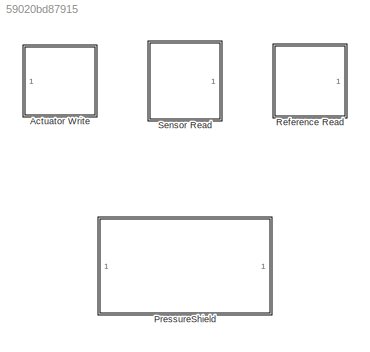
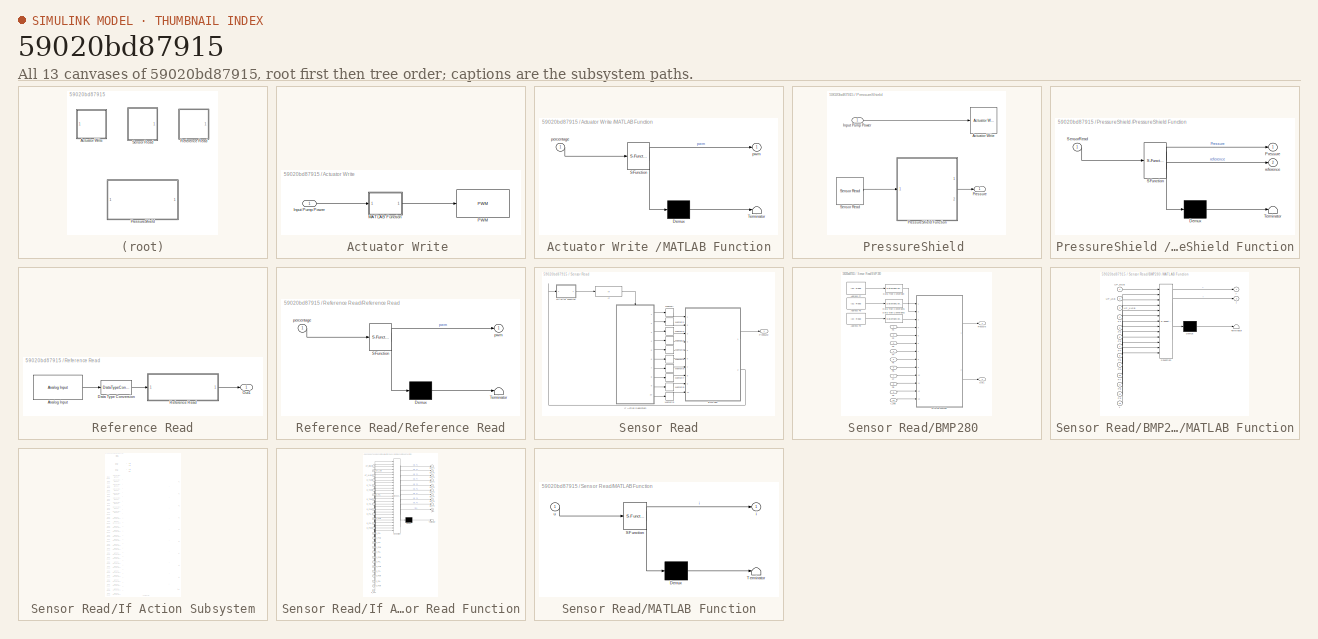
[diagram: thumbnail index - all 13 canvases of the model, root first then tree order]
MODEL slx_59020bd87915
KIND library
CONFIG AbsTol = auto
CONFIG EnableMultiTasking = off
CONFIG FixedStep = auto
CONFIG MaxStep = auto
CONFIG MinStep = auto
CONFIG RelTol = 1e-3
CONFIG SampleTimeConstraint = Unconstrained
CONFIG SolverName = VariableStepAuto
CONFIG StartTime = 0.0
CONFIG StopTime = 10.0
BLOCK [SubSystem] Actuator Write 
  Ports = [1]
  RequestExecContextInheritance = off
BLOCK [Inport] Actuator Write /Input Pump Power
BLOCK [SubSystem] Actuator Write /MATLAB Function
  ErrorFcn = Stateflow.Translate.translate
  PermitHierarchicalResolution = ExplicitOnly
  Ports = [1, 1]
  RequestExecContextInheritance = off
  SFBlockType = MATLAB Function
  SystemSampleTime = 0.01
  TreatAsAtomicUnit = on
BLOCK [Demux] Actuator Write /MATLAB Function/ Demux 
  Outputs = 1
  Ports = [1, 1]
BLOCK [S-Function] Actuator Write /MATLAB Function/ SFunction 
  EnableBusSupport = off
  FunctionName = sf_sfun
  PortCounts = [1 2]
  Ports = [1, 2]
  SFcnIsStateOwnerBlock = off
  SFunctionDeploymentMode = off
  Tag = Stateflow S-Function PressureLibrary 4
BLOCK [Terminator] Actuator Write /MATLAB Function/ Terminator 
BLOCK [Inport] Actuator Write /MATLAB Function/percentage
BLOCK [Outport] Actuator Write /MATLAB Function/pwm
BLOCK [Reference] Actuator Write /PWM  REF=arduinolib/PWM
  Ports = [1]
  SourceBlock = arduinolib/PWM
  SourceProductBaseCode = ARDUINO
  SourceType = Arduino PWM
BLOCK [SubSystem] PressureShield 
  Ports = [1, 1]
  RequestExecContextInheritance = off
BLOCK [Reference] PressureShield /Actuator Write   REF=$bdroot/Actuator Write

  Ports = [1]
  SourceBlock = $bdroot/Actuator Write
  SourceType = SubSystem
BLOCK [Inport] PressureShield /Input Pump Power 
BLOCK [Outport] PressureShield /Pressure 
BLOCK [SubSystem] PressureShield /PressureShield Function
  ErrorFcn = Stateflow.Translate.translate
  PermitHierarchicalResolution = ExplicitOnly
  Ports = [1, 2]
  RequestExecContextInheritance = off
  SFBlockType = MATLAB Function
  SystemSampleTime = 0.01
  TreatAsAtomicUnit = on
BLOCK [Demux] PressureShield /PressureShield Function/ Demux 
  Outputs = 1
  Ports = [1, 1]
BLOCK [S-Function] PressureShield /PressureShield Function/ SFunction 
  EnableBusSupport = off
  FunctionName = sf_sfun
  PortCounts = [1 3]
  Ports = [1, 3]
  SFcnIsStateOwnerBlock = off
  SFunctionDeploymentMode = off
  Tag = Stateflow S-Function PressureLibrary 3
BLOCK [Terminator] PressureShield /PressureShield Function/ Terminator 
BLOCK [Outport] PressureShield /PressureShield Function/Pressure
BLOCK [Inport] PressureShield /PressureShield Function/SensorRead
BLOCK [Outport] PressureShield /PressureShield Function/reference
  Port = 2
BLOCK [Reference] PressureShield /Sensor Read  REF=$bdroot/Sensor Read
  Ports = [0, 1]
  SourceBlock = $bdroot/Sensor Read
  SourceType = SubSystem
BLOCK [SubSystem] Reference Read
  Ports = [0, 1]
  RequestExecContextInheritance = off
BLOCK [Reference] Reference Read/Analog Input  REF=arduinolib/Analog Input
  Ports = [0, 1]
  SourceBlock = arduinolib/Analog Input
  SourceProductBaseCode = ARDUINO
  SourceType = Arduino Analog Input
BLOCK [DataTypeConversion] Reference Read/Data Type Conversion
  OutDataTypeStr = double
  RndMeth = Floor
  SaturateOnIntegerOverflow = off
BLOCK [Outport] Reference Read/Out1
BLOCK [SubSystem] Reference Read/Reference Read
  ErrorFcn = Stateflow.Translate.translate
  PermitHierarchicalResolution = ExplicitOnly
  Ports = [1, 1]
  RequestExecContextInheritance = off
  SFBlockType = MATLAB Function
  SystemSampleTime = 0.01
  TreatAsAtomicUnit = on
BLOCK [Demux] Reference Read/Reference Read/ Demux 
  Outputs = 1
  Ports = [1, 1]
BLOCK [S-Function] Reference Read/Reference Read/ SFunction 
  EnableBusSupport = off
  FunctionName = sf_sfun
  PortCounts = [1 2]
  Ports = [1, 2]
  SFcnIsStateOwnerBlock = off
  SFunctionDeploymentMode = off
  Tag = Stateflow S-Function PressureLibrary 1
BLOCK [Terminator] Reference Read/Reference Read/ Terminator 
BLOCK [Inport] Reference Read/Reference Read/percentage
BLOCK [Outport] Reference Read/Reference Read/pwm
BLOCK [SubSystem] Sensor Read
  Ports = [0, 1]
  RequestExecContextInheritance = off
BLOCK [SubSystem] Sensor Read/BMP280 
  Ports = [10, 2]
  RequestExecContextInheritance = off
BLOCK [Reference] Sensor Read/BMP280 /Address F7  REF=arduinolib/I2C Read
  Ports = [0, 1]
  SourceBlock = arduinolib/I2C Read
  SourceProductBaseCode = ARDUINO
  SourceType = I2C Read
BLOCK [Reference] Sensor Read/BMP280 /Address F8  REF=arduinolib/I2C Read
  Ports = [0, 1]
  SourceBlock = arduinolib/I2C Read
  SourceProductBaseCode = ARDUINO
  SourceType = I2C Read
BLOCK [Reference] Sensor Read/BMP280 /Address F9   REF=arduinolib/I2C Read
  Ports = [0, 1]
  SourceBlock = arduinolib/I2C Read
  SourceProductBaseCode = ARDUINO
  SourceType = I2C Read
BLOCK [DataTypeConversion] Sensor Read/BMP280 /Data Type Conversion
  ConvertRealWorld = Stored Integer (SI)
  OutDataTypeStr = double
  RndMeth = Floor
  SaturateOnIntegerOverflow = off
BLOCK [DataTypeConversion] Sensor Read/BMP280 /Data Type Conversion1
  ConvertRealWorld = Stored Integer (SI)
  OutDataTypeStr = double
  RndMeth = Floor
  SaturateOnIntegerOverflow = off
BLOCK [DataTypeConversion] Sensor Read/BMP280 /Data Type Conversion2
  ConvertRealWorld = Stored Integer (SI)
  OutDataTypeStr = double
  RndMeth = Floor
  SaturateOnIntegerOverflow = off
BLOCK [SubSystem] Sensor Read/BMP280 /MATLAB Function
  ErrorFcn = Stateflow.Translate.translate
  PermitHierarchicalResolution = ExplicitOnly
  Ports = [13, 2]
  RequestExecContextInheritance = off
  SFBlockType = MATLAB Function
  SystemSampleTime = Ts
  TreatAsAtomicUnit = on
BLOCK [Demux] Sensor Read/BMP280 /MATLAB Function/ Demux 
  Outputs = 1
  Ports = [1, 1]
BLOCK [S-Function] Sensor Read/BMP280 /MATLAB Function/ SFunction 
  EnableBusSupport = off
  FunctionName = sf_sfun
  PortCounts = [13 3]
  Ports = [13, 3]
  SFcnIsStateOwnerBlock = off
  SFunctionDeploymentMode = off
  Tag = Stateflow S-Function PressureLibrary 5
BLOCK [Terminator] Sensor Read/BMP280 /MATLAB Function/ Terminator 
BLOCK [Inport] Sensor Read/BMP280 /MATLAB Function/P1
  Port = 4
BLOCK [Inport] Sensor Read/BMP280 /MATLAB Function/P2
  Port = 5
BLOCK [Inport] Sensor Read/BMP280 /MATLAB Function/P3
  Port = 6
BLOCK [Inport] Sensor Read/BMP280 /MATLAB Function/P4
  Port = 7
BLOCK [Inport] Sensor Read/BMP280 /MATLAB Function/P5
  Port = 8
BLOCK [Inport] Sensor Read/BMP280 /MATLAB Function/P6
  Port = 9
BLOCK [Inport] Sensor Read/BMP280 /MATLAB Function/P7
  Port = 10
BLOCK [Inport] Sensor Read/BMP280 /MATLAB Function/P8
  Port = 11
BLOCK [Inport] Sensor Read/BMP280 /MATLAB Function/P9
  Port = 12
BLOCK [Inport] Sensor Read/BMP280 /MATLAB Function/UP_LSB
  Port = 2
BLOCK [Inport] Sensor Read/BMP280 /MATLAB Function/UP_MSB
BLOCK [Inport] Sensor Read/BMP280 /MATLAB Function/UP_XLSB
  Port = 3
BLOCK [Outport] Sensor Read/BMP280 /MATLAB Function/i
  Port = 2
BLOCK [Inport] Sensor Read/BMP280 /MATLAB Function/t
  Port = 13
BLOCK [Outport] Sensor Read/BMP280 /MATLAB Function/y
BLOCK [Outport] Sensor Read/BMP280 /Out1
  Port = 2
BLOCK [Inport] Sensor Read/BMP280 /P1
BLOCK [Inport] Sensor Read/BMP280 /P2
  Port = 2
BLOCK [Inport] Sensor Read/BMP280 /P3
  Port = 3
BLOCK [Inport] Sensor Read/BMP280 /P4
  Port = 4
BLOCK [Inport] Sensor Read/BMP280 /P5
  Port = 5
BLOCK [Inport] Sensor Read/BMP280 /P6
  Port = 6
BLOCK [Inport] Sensor Read/BMP280 /P7
  Port = 7
BLOCK [Inport] Sensor Read/BMP280 /P8
  Port = 8
BLOCK [Inport] Sensor Read/BMP280 /P9
  Port = 9
BLOCK [Outport] Sensor Read/BMP280 /Pressure
BLOCK [Inport] Sensor Read/BMP280 /t_fine
  Port = 10
BLOCK [If] Sensor Read/If
  IfExpression = u1 == 1
  Ports = [1, 1]
  ShowElse = off
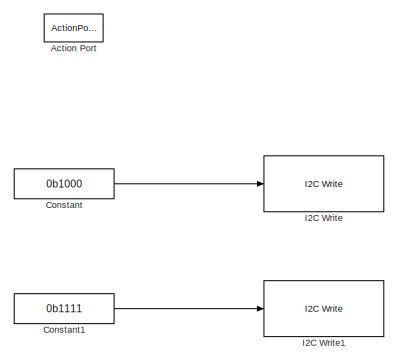
[diagram: Sensor Read/If Action Subsystem - part 1/6, top left region]
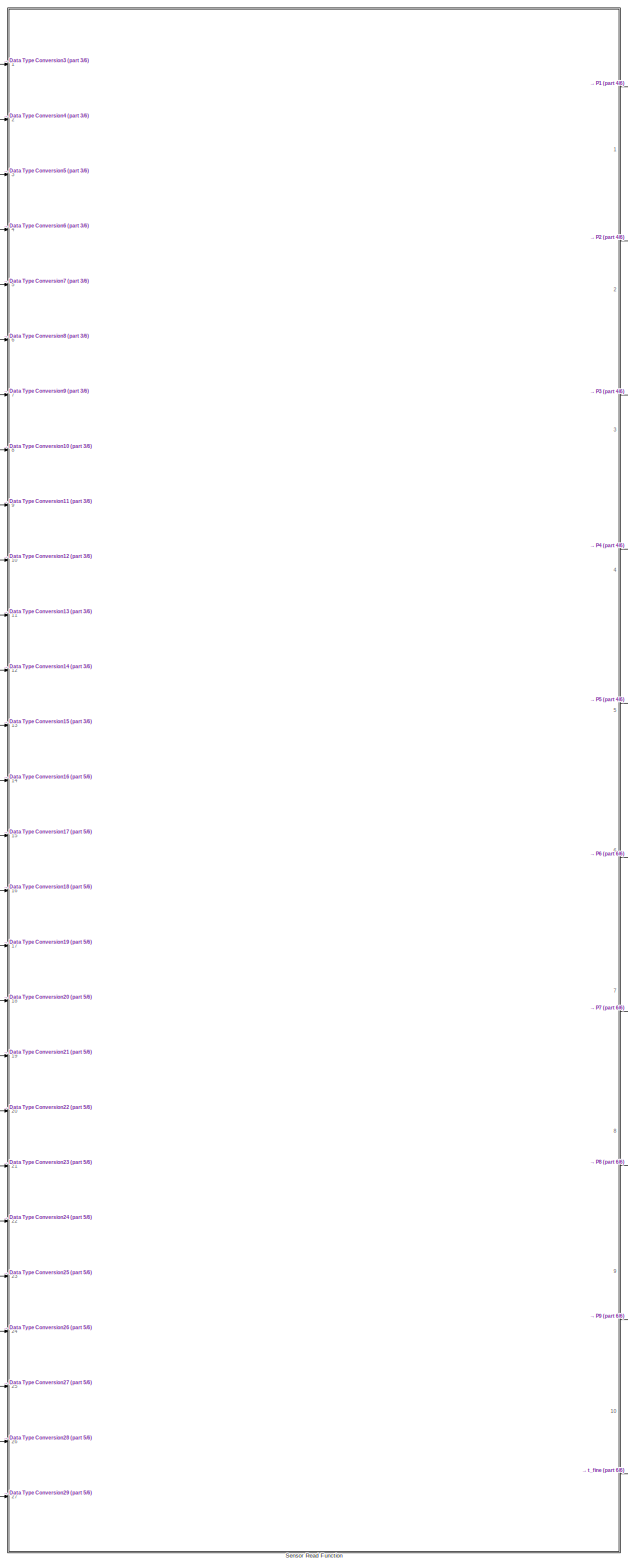
[diagram: Sensor Read/If Action Subsystem - part 2/6, center side, full height]
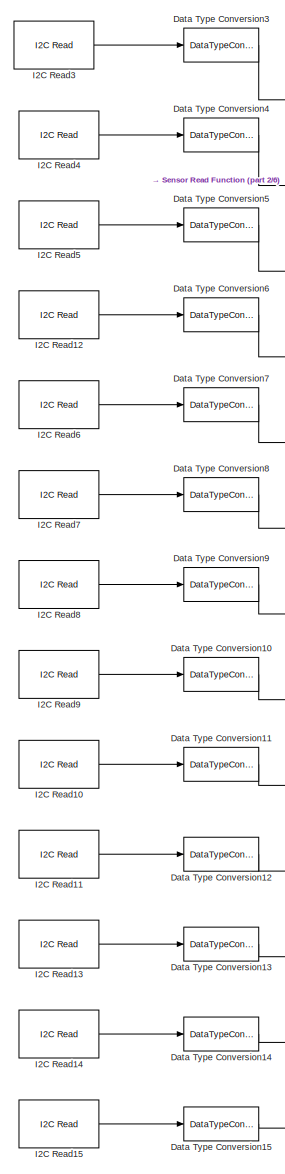
[diagram: Sensor Read/If Action Subsystem - part 3/6, middle left region]
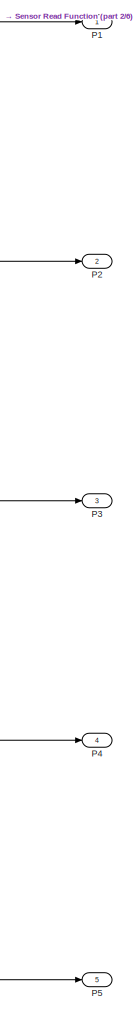
[diagram: Sensor Read/If Action Subsystem - part 4/6, middle right region]
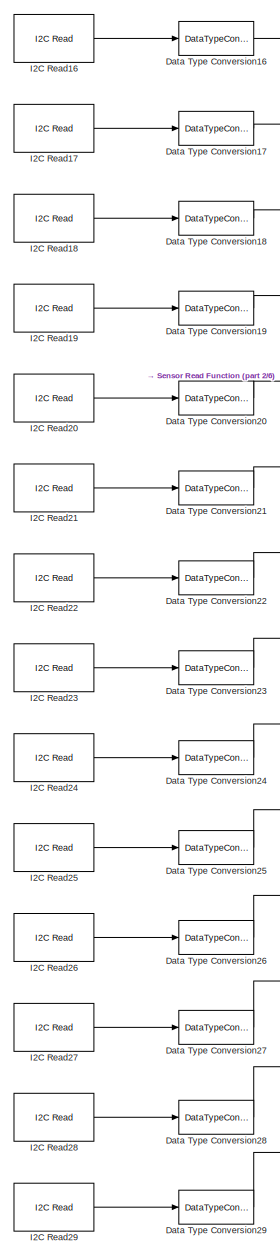
[diagram: Sensor Read/If Action Subsystem - part 5/6, bottom left region]
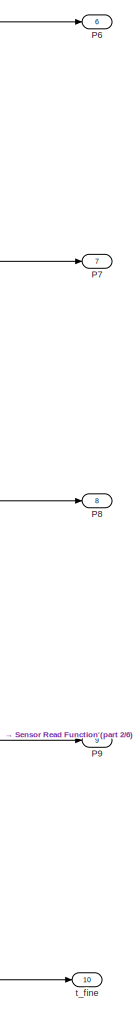
[diagram: Sensor Read/If Action Subsystem - part 6/6, bottom right region]
BLOCK [SubSystem] Sensor Read/If Action Subsystem
  Ports = [0, 10, 0, 0, 0, 0, 0, 1]
  RequestExecContextInheritance = off
  TreatAsAtomicUnit = on
BLOCK [ActionPort] Sensor Read/If Action Subsystem/Action Port
BLOCK [Constant] Sensor Read/If Action Subsystem/Constant
  OutDataTypeStr = uint8
  Value = 0b1000
  VectorParams1D = off
BLOCK [Constant] Sensor Read/If Action Subsystem/Constant1
  OutDataTypeStr = uint8
  Value = 0b1111
BLOCK [DataTypeConversion] Sensor Read/If Action Subsystem/Data Type Conversion10
  ConvertRealWorld = Stored Integer (SI)
  OutDataTypeStr = double
  RndMeth = Floor
  SaturateOnIntegerOverflow = off
BLOCK [DataTypeConversion] Sensor Read/If Action Subsystem/Data Type Conversion11
  ConvertRealWorld = Stored Integer (SI)
  OutDataTypeStr = double
  RndMeth = Floor
  SaturateOnIntegerOverflow = off
BLOCK [DataTypeConversion] Sensor Read/If Action Subsystem/Data Type Conversion12
  ConvertRealWorld = Stored Integer (SI)
  OutDataTypeStr = double
  RndMeth = Floor
  SaturateOnIntegerOverflow = off
BLOCK [DataTypeConversion] Sensor Read/If Action Subsystem/Data Type Conversion13
  ConvertRealWorld = Stored Integer (SI)
  OutDataTypeStr = double
  RndMeth = Floor
  SaturateOnIntegerOverflow = off
BLOCK [DataTypeConversion] Sensor Read/If Action Subsystem/Data Type Conversion14
  ConvertRealWorld = Stored Integer (SI)
  OutDataTypeStr = double
  RndMeth = Floor
  SaturateOnIntegerOverflow = off
BLOCK [DataTypeConversion] Sensor Read/If Action Subsystem/Data Type Conversion15
  ConvertRealWorld = Stored Integer (SI)
  OutDataTypeStr = double
  RndMeth = Floor
  SaturateOnIntegerOverflow = off
BLOCK [DataTypeConversion] Sensor Read/If Action Subsystem/Data Type Conversion16
  ConvertRealWorld = Stored Integer (SI)
  OutDataTypeStr = double
  RndMeth = Floor
  SaturateOnIntegerOverflow = off
BLOCK [DataTypeConversion] Sensor Read/If Action Subsystem/Data Type Conversion17
  ConvertRealWorld = Stored Integer (SI)
  OutDataTypeStr = double
  RndMeth = Floor
  SaturateOnIntegerOverflow = off
BLOCK [DataTypeConversion] Sensor Read/If Action Subsystem/Data Type Conversion18
  ConvertRealWorld = Stored Integer (SI)
  OutDataTypeStr = double
  RndMeth = Floor
  SaturateOnIntegerOverflow = off
BLOCK [DataTypeConversion] Sensor Read/If Action Subsystem/Data Type Conversion19
  ConvertRealWorld = Stored Integer (SI)
  OutDataTypeStr = double
  RndMeth = Floor
  SaturateOnIntegerOverflow = off
BLOCK [DataTypeConversion] Sensor Read/If Action Subsystem/Data Type Conversion20
  ConvertRealWorld = Stored Integer (SI)
  OutDataTypeStr = double
  RndMeth = Floor
  SaturateOnIntegerOverflow = off
BLOCK [DataTypeConversion] Sensor Read/If Action Subsystem/Data Type Conversion21
  ConvertRealWorld = Stored Integer (SI)
  OutDataTypeStr = double
  RndMeth = Floor
  SaturateOnIntegerOverflow = off
BLOCK [DataTypeConversion] Sensor Read/If Action Subsystem/Data Type Conversion22
  ConvertRealWorld = Stored Integer (SI)
  OutDataTypeStr = double
  RndMeth = Floor
  SaturateOnIntegerOverflow = off
BLOCK [DataTypeConversion] Sensor Read/If Action Subsystem/Data Type Conversion23
  ConvertRealWorld = Stored Integer (SI)
  OutDataTypeStr = double
  RndMeth = Floor
  SaturateOnIntegerOverflow = off
BLOCK [DataTypeConversion] Sensor Read/If Action Subsystem/Data Type Conversion24
  ConvertRealWorld = Stored Integer (SI)
  OutDataTypeStr = double
  RndMeth = Floor
  SaturateOnIntegerOverflow = off
BLOCK [DataTypeConversion] Sensor Read/If Action Subsystem/Data Type Conversion25
  ConvertRealWorld = Stored Integer (SI)
  OutDataTypeStr = double
  RndMeth = Floor
  SaturateOnIntegerOverflow = off
BLOCK [DataTypeConversion] Sensor Read/If Action Subsystem/Data Type Conversion26
  ConvertRealWorld = Stored Integer (SI)
  OutDataTypeStr = double
  RndMeth = Floor
  SaturateOnIntegerOverflow = off
BLOCK [DataTypeConversion] Sensor Read/If Action Subsystem/Data Type Conversion27
  ConvertRealWorld = Stored Integer (SI)
  OutDataTypeStr = double
  RndMeth = Floor
  SaturateOnIntegerOverflow = off
BLOCK [DataTypeConversion] Sensor Read/If Action Subsystem/Data Type Conversion28
  ConvertRealWorld = Stored Integer (SI)
  OutDataTypeStr = double
  RndMeth = Floor
  SaturateOnIntegerOverflow = off
BLOCK [DataTypeConversion] Sensor Read/If Action Subsystem/Data Type Conversion29
  ConvertRealWorld = Stored Integer (SI)
  OutDataTypeStr = double
  RndMeth = Floor
  SaturateOnIntegerOverflow = off
BLOCK [DataTypeConversion] Sensor Read/If Action Subsystem/Data Type Conversion3
  ConvertRealWorld = Stored Integer (SI)
  OutDataTypeStr = double
  RndMeth = Floor
  SaturateOnIntegerOverflow = off
BLOCK [DataTypeConversion] Sensor Read/If Action Subsystem/Data Type Conversion4
  ConvertRealWorld = Stored Integer (SI)
  OutDataTypeStr = double
  RndMeth = Floor
  SaturateOnIntegerOverflow = off
BLOCK [DataTypeConversion] Sensor Read/If Action Subsystem/Data Type Conversion5
  ConvertRealWorld = Stored Integer (SI)
  OutDataTypeStr = double
  RndMeth = Floor
  SaturateOnIntegerOverflow = off
BLOCK [DataTypeConversion] Sensor Read/If Action Subsystem/Data Type Conversion6
  ConvertRealWorld = Stored Integer (SI)
  OutDataTypeStr = double
  RndMeth = Floor
  SaturateOnIntegerOverflow = off
BLOCK [DataTypeConversion] Sensor Read/If Action Subsystem/Data Type Conversion7
  ConvertRealWorld = Stored Integer (SI)
  OutDataTypeStr = double
  RndMeth = Floor
  SaturateOnIntegerOverflow = off
BLOCK [DataTypeConversion] Sensor Read/If Action Subsystem/Data Type Conversion8
  ConvertRealWorld = Stored Integer (SI)
  OutDataTypeStr = double
  RndMeth = Floor
  SaturateOnIntegerOverflow = off
BLOCK [DataTypeConversion] Sensor Read/If Action Subsystem/Data Type Conversion9
  ConvertRealWorld = Stored Integer (SI)
  OutDataTypeStr = double
  RndMeth = Floor
  SaturateOnIntegerOverflow = off
BLOCK [Reference] Sensor Read/If Action Subsystem/I2C Read10  REF=arduinolib/I2C Read
  Ports = [0, 1]
  SourceBlock = arduinolib/I2C Read
  SourceProductBaseCode = ARDUINO
  SourceType = I2C Read
BLOCK [Reference] Sensor Read/If Action Subsystem/I2C Read11  REF=arduinolib/I2C Read
  Ports = [0, 1]
  SourceBlock = arduinolib/I2C Read
  SourceProductBaseCode = ARDUINO
  SourceType = I2C Read
BLOCK [Reference] Sensor Read/If Action Subsystem/I2C Read12  REF=arduinolib/I2C Read
  Ports = [0, 1]
  SourceBlock = arduinolib/I2C Read
  SourceProductBaseCode = ARDUINO
  SourceType = I2C Read
BLOCK [Reference] Sensor Read/If Action Subsystem/I2C Read13  REF=arduinolib/I2C Read
  Ports = [0, 1]
  SourceBlock = arduinolib/I2C Read
  SourceProductBaseCode = ARDUINO
  SourceType = I2C Read
BLOCK [Reference] Sensor Read/If Action Subsystem/I2C Read14  REF=arduinolib/I2C Read
  Ports = [0, 1]
  SourceBlock = arduinolib/I2C Read
  SourceProductBaseCode = ARDUINO
  SourceType = I2C Read
BLOCK [Reference] Sensor Read/If Action Subsystem/I2C Read15  REF=arduinolib/I2C Read
  Ports = [0, 1]
  SourceBlock = arduinolib/I2C Read
  SourceProductBaseCode = ARDUINO
  SourceType = I2C Read
BLOCK [Reference] Sensor Read/If Action Subsystem/I2C Read16  REF=arduinolib/I2C Read
  Ports = [0, 1]
  SourceBlock = arduinolib/I2C Read
  SourceProductBaseCode = ARDUINO
  SourceType = I2C Read
BLOCK [Reference] Sensor Read/If Action Subsystem/I2C Read17  REF=arduinolib/I2C Read
  Ports = [0, 1]
  SourceBlock = arduinolib/I2C Read
  SourceProductBaseCode = ARDUINO
  SourceType = I2C Read
BLOCK [Reference] Sensor Read/If Action Subsystem/I2C Read18  REF=arduinolib/I2C Read
  Ports = [0, 1]
  SourceBlock = arduinolib/I2C Read
  SourceProductBaseCode = ARDUINO
  SourceType = I2C Read
BLOCK [Reference] Sensor Read/If Action Subsystem/I2C Read19  REF=arduinolib/I2C Read
  Ports = [0, 1]
  SourceBlock = arduinolib/I2C Read
  SourceProductBaseCode = ARDUINO
  SourceType = I2C Read
BLOCK [Reference] Sensor Read/If Action Subsystem/I2C Read20  REF=arduinolib/I2C Read
  Ports = [0, 1]
  SourceBlock = arduinolib/I2C Read
  SourceProductBaseCode = ARDUINO
  SourceType = I2C Read
BLOCK [Reference] Sensor Read/If Action Subsystem/I2C Read21  REF=arduinolib/I2C Read
  Ports = [0, 1]
  SourceBlock = arduinolib/I2C Read
  SourceProductBaseCode = ARDUINO
  SourceType = I2C Read
BLOCK [Reference] Sensor Read/If Action Subsystem/I2C Read22  REF=arduinolib/I2C Read
  Ports = [0, 1]
  SourceBlock = arduinolib/I2C Read
  SourceProductBaseCode = ARDUINO
  SourceType = I2C Read
BLOCK [Reference] Sensor Read/If Action Subsystem/I2C Read23  REF=arduinolib/I2C Read
  Ports = [0, 1]
  SourceBlock = arduinolib/I2C Read
  SourceProductBaseCode = ARDUINO
  SourceType = I2C Read
BLOCK [Reference] Sensor Read/If Action Subsystem/I2C Read24  REF=arduinolib/I2C Read
  Ports = [0, 1]
  SourceBlock = arduinolib/I2C Read
  SourceProductBaseCode = ARDUINO
  SourceType = I2C Read
BLOCK [Reference] Sensor Read/If Action Subsystem/I2C Read25  REF=arduinolib/I2C Read
  Ports = [0, 1]
  SourceBlock = arduinolib/I2C Read
  SourceProductBaseCode = ARDUINO
  SourceType = I2C Read
BLOCK [Reference] Sensor Read/If Action Subsystem/I2C Read26  REF=arduinolib/I2C Read
  Ports = [0, 1]
  SourceBlock = arduinolib/I2C Read
  SourceProductBaseCode = ARDUINO
  SourceType = I2C Read
BLOCK [Reference] Sensor Read/If Action Subsystem/I2C Read27  REF=arduinolib/I2C Read
  Ports = [0, 1]
  SourceBlock = arduinolib/I2C Read
  SourceProductBaseCode = ARDUINO
  SourceType = I2C Read
BLOCK [Reference] Sensor Read/If Action Subsystem/I2C Read28  REF=arduinolib/I2C Read
  Ports = [0, 1]
  SourceBlock = arduinolib/I2C Read
  SourceProductBaseCode = ARDUINO
  SourceType = I2C Read
BLOCK [Reference] Sensor Read/If Action Subsystem/I2C Read29  REF=arduinolib/I2C Read
  Ports = [0, 1]
  SourceBlock = arduinolib/I2C Read
  SourceProductBaseCode = ARDUINO
  SourceType = I2C Read
BLOCK [Reference] Sensor Read/If Action Subsystem/I2C Read3  REF=arduinolib/I2C Read
  Ports = [0, 1]
  SourceBlock = arduinolib/I2C Read
  SourceProductBaseCode = ARDUINO
  SourceType = I2C Read
BLOCK [Reference] Sensor Read/If Action Subsystem/I2C Read4  REF=arduinolib/I2C Read
  Ports = [0, 1]
  SourceBlock = arduinolib/I2C Read
  SourceProductBaseCode = ARDUINO
  SourceType = I2C Read
BLOCK [Reference] Sensor Read/If Action Subsystem/I2C Read5  REF=arduinolib/I2C Read
  Ports = [0, 1]
  SourceBlock = arduinolib/I2C Read
  SourceProductBaseCode = ARDUINO
  SourceType = I2C Read
BLOCK [Reference] Sensor Read/If Action Subsystem/I2C Read6  REF=arduinolib/I2C Read
  Ports = [0, 1]
  SourceBlock = arduinolib/I2C Read
  SourceProductBaseCode = ARDUINO
  SourceType = I2C Read
BLOCK [Reference] Sensor Read/If Action Subsystem/I2C Read7  REF=arduinolib/I2C Read
  Ports = [0, 1]
  SourceBlock = arduinolib/I2C Read
  SourceProductBaseCode = ARDUINO
  SourceType = I2C Read
BLOCK [Reference] Sensor Read/If Action Subsystem/I2C Read8  REF=arduinolib/I2C Read
  Ports = [0, 1]
  SourceBlock = arduinolib/I2C Read
  SourceProductBaseCode = ARDUINO
  SourceType = I2C Read
BLOCK [Reference] Sensor Read/If Action Subsystem/I2C Read9  REF=arduinolib/I2C Read
  Ports = [0, 1]
  SourceBlock = arduinolib/I2C Read
  SourceProductBaseCode = ARDUINO
  SourceType = I2C Read
BLOCK [Reference] Sensor Read/If Action Subsystem/I2C Write  REF=arduinolib/I2C Write
  Ports = [1]
  SourceBlock = arduinolib/I2C Write
  SourceProductBaseCode = ARDUINO
  SourceType = I2C Write
BLOCK [Reference] Sensor Read/If Action Subsystem/I2C Write1  REF=arduinolib/I2C Write
  Ports = [1]
  SourceBlock = arduinolib/I2C Write
  SourceProductBaseCode = ARDUINO
  SourceType = I2C Write
BLOCK [Outport] Sensor Read/If Action Subsystem/P1
BLOCK [Outport] Sensor Read/If Action Subsystem/P2
  Port = 2
BLOCK [Outport] Sensor Read/If Action Subsystem/P3
  Port = 3
BLOCK [Outport] Sensor Read/If Action Subsystem/P4
  Port = 4
BLOCK [Outport] Sensor Read/If Action Subsystem/P5
  Port = 5
BLOCK [Outport] Sensor Read/If Action Subsystem/P6
  Port = 6
BLOCK [Outport] Sensor Read/If Action Subsystem/P7
  Port = 7
BLOCK [Outport] Sensor Read/If Action Subsystem/P8
  Port = 8
BLOCK [Outport] Sensor Read/If Action Subsystem/P9
  Port = 9
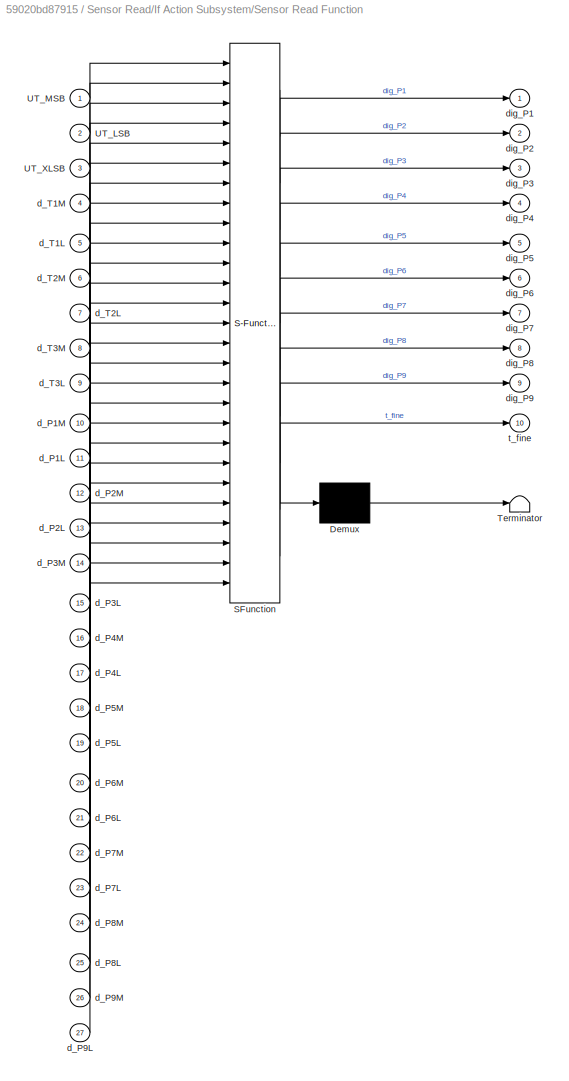
BLOCK [SubSystem] Sensor Read/If Action Subsystem/Sensor Read Function
  ErrorFcn = Stateflow.Translate.translate
  PermitHierarchicalResolution = ExplicitOnly
  Ports = [27, 10]
  RequestExecContextInheritance = off
  SFBlockType = MATLAB Function
  SystemSampleTime = Ts
  TreatAsAtomicUnit = on
BLOCK [Demux] Sensor Read/If Action Subsystem/Sensor Read Function/ Demux 
  Outputs = 1
  Ports = [1, 1]
BLOCK [S-Function] Sensor Read/If Action Subsystem/Sensor Read Function/ SFunction 
  EnableBusSupport = off
  FunctionName = sf_sfun
  PortCounts = [27 11]
  Ports = [27, 11]
  SFcnIsStateOwnerBlock = off
  SFunctionDeploymentMode = off
  Tag = Stateflow S-Function PressureLibrary 8
BLOCK [Terminator] Sensor Read/If Action Subsystem/Sensor Read Function/ Terminator 
BLOCK [Inport] Sensor Read/If Action Subsystem/Sensor Read Function/UT_LSB
  Port = 2
BLOCK [Inport] Sensor Read/If Action Subsystem/Sensor Read Function/UT_MSB
BLOCK [Inport] Sensor Read/If Action Subsystem/Sensor Read Function/UT_XLSB
  Port = 3
BLOCK [Inport] Sensor Read/If Action Subsystem/Sensor Read Function/d_P1L
  Port = 11
BLOCK [Inport] Sensor Read/If Action Subsystem/Sensor Read Function/d_P1M
  Port = 10
BLOCK [Inport] Sensor Read/If Action Subsystem/Sensor Read Function/d_P2L
  Port = 13
BLOCK [Inport] Sensor Read/If Action Subsystem/Sensor Read Function/d_P2M
  Port = 12
BLOCK [Inport] Sensor Read/If Action Subsystem/Sensor Read Function/d_P3L
  Port = 15
BLOCK [Inport] Sensor Read/If Action Subsystem/Sensor Read Function/d_P3M
  Port = 14
BLOCK [Inport] Sensor Read/If Action Subsystem/Sensor Read Function/d_P4L
  Port = 17
BLOCK [Inport] Sensor Read/If Action Subsystem/Sensor Read Function/d_P4M
  Port = 16
BLOCK [Inport] Sensor Read/If Action Subsystem/Sensor Read Function/d_P5L
  Port = 19
BLOCK [Inport] Sensor Read/If Action Subsystem/Sensor Read Function/d_P5M
  Port = 18
BLOCK [Inport] Sensor Read/If Action Subsystem/Sensor Read Function/d_P6L
  Port = 21
BLOCK [Inport] Sensor Read/If Action Subsystem/Sensor Read Function/d_P6M
  Port = 20
BLOCK [Inport] Sensor Read/If Action Subsystem/Sensor Read Function/d_P7L
  Port = 23
BLOCK [Inport] Sensor Read/If Action Subsystem/Sensor Read Function/d_P7M
  Port = 22
BLOCK [Inport] Sensor Read/If Action Subsystem/Sensor Read Function/d_P8L
  Port = 25
BLOCK [Inport] Sensor Read/If Action Subsystem/Sensor Read Function/d_P8M
  Port = 24
BLOCK [Inport] Sensor Read/If Action Subsystem/Sensor Read Function/d_P9L
  Port = 27
BLOCK [Inport] Sensor Read/If Action Subsystem/Sensor Read Function/d_P9M
  Port = 26
BLOCK [Inport] Sensor Read/If Action Subsystem/Sensor Read Function/d_T1L
  Port = 5
BLOCK [Inport] Sensor Read/If Action Subsystem/Sensor Read Function/d_T1M
  Port = 4
BLOCK [Inport] Sensor Read/If Action Subsystem/Sensor Read Function/d_T2L
  Port = 7
BLOCK [Inport] Sensor Read/If Action Subsystem/Sensor Read Function/d_T2M
  Port = 6
BLOCK [Inport] Sensor Read/If Action Subsystem/Sensor Read Function/d_T3L
  Port = 9
BLOCK [Inport] Sensor Read/If Action Subsystem/Sensor Read Function/d_T3M
  Port = 8
BLOCK [Outport] Sensor Read/If Action Subsystem/Sensor Read Function/dig_P1
BLOCK [Outport] Sensor Read/If Action Subsystem/Sensor Read Function/dig_P2
  Port = 2
BLOCK [Outport] Sensor Read/If Action Subsystem/Sensor Read Function/dig_P3
  Port = 3
BLOCK [Outport] Sensor Read/If Action Subsystem/Sensor Read Function/dig_P4
  Port = 4
BLOCK [Outport] Sensor Read/If Action Subsystem/Sensor Read Function/dig_P5
  Port = 5
BLOCK [Outport] Sensor Read/If Action Subsystem/Sensor Read Function/dig_P6
  Port = 6
BLOCK [Outport] Sensor Read/If Action Subsystem/Sensor Read Function/dig_P7
  Port = 7
BLOCK [Outport] Sensor Read/If Action Subsystem/Sensor Read Function/dig_P8
  Port = 8
BLOCK [Outport] Sensor Read/If Action Subsystem/Sensor Read Function/dig_P9
  Port = 9
BLOCK [Outport] Sensor Read/If Action Subsystem/Sensor Read Function/t_fine
  Port = 10
BLOCK [Outport] Sensor Read/If Action Subsystem/t_fine
  Port = 10
BLOCK [SubSystem] Sensor Read/MATLAB Function
  ErrorFcn = Stateflow.Translate.translate
  PermitHierarchicalResolution = ExplicitOnly
  Ports = [1, 1]
  RequestExecContextInheritance = off
  SFBlockType = MATLAB Function
  SystemSampleTime = 0.01
  TreatAsAtomicUnit = on
BLOCK [Demux] Sensor Read/MATLAB Function/ Demux 
  Outputs = 1
  Ports = [1, 1]
BLOCK [S-Function] Sensor Read/MATLAB Function/ SFunction 
  EnableBusSupport = off
  FunctionName = sf_sfun
  PortCounts = [1 2]
  Ports = [1, 2]
  SFcnIsStateOwnerBlock = off
  SFunctionDeploymentMode = off
  Tag = Stateflow S-Function PressureLibrary 7
BLOCK [Terminator] Sensor Read/MATLAB Function/ Terminator 
BLOCK [Outport] Sensor Read/MATLAB Function/i
BLOCK [Inport] Sensor Read/MATLAB Function/u
BLOCK [Memory] Sensor Read/Memory
BLOCK [Memory] Sensor Read/Memory1
BLOCK [Memory] Sensor Read/Memory2
BLOCK [Memory] Sensor Read/Memory3
BLOCK [Memory] Sensor Read/Memory4
BLOCK [Memory] Sensor Read/Memory5
BLOCK [Memory] Sensor Read/Memory6
BLOCK [Memory] Sensor Read/Memory7
BLOCK [Memory] Sensor Read/Memory8
BLOCK [Memory] Sensor Read/Memory9
BLOCK [Outport] Sensor Read/Pressure
LINE Actuator Write /Input Pump Power:1 -> Actuator Write /MATLAB Function:1
LINE Actuator Write /MATLAB Function:1 -> Actuator Write /PWM:1
LINE PressureShield /Input Pump Power :1 -> PressureShield /Actuator Write :1
LINE PressureShield /PressureShield Function:1 -> PressureShield /Pressure :1
LINE PressureShield /Sensor Read:1 -> PressureShield /PressureShield Function:1
LINE Reference Read/Analog Input:1 -> Reference Read/Data Type Conversion:1
LINE Reference Read/Data Type Conversion:1 -> Reference Read/Reference Read:1
LINE Reference Read/Reference Read:1 -> Reference Read/Out1:1
LINE Sensor Read/BMP280 /Address F7:1 -> Sensor Read/BMP280 /Data Type Conversion:1
LINE Sensor Read/BMP280 /Address F8:1 -> Sensor Read/BMP280 /Data Type Conversion1:1
LINE Sensor Read/BMP280 /Address F9 :1 -> Sensor Read/BMP280 /Data Type Conversion2:1
LINE Sensor Read/BMP280 /Data Type Conversion1:1 -> Sensor Read/BMP280 /MATLAB Function:2
LINE Sensor Read/BMP280 /Data Type Conversion2:1 -> Sensor Read/BMP280 /MATLAB Function:3
LINE Sensor Read/BMP280 /Data Type Conversion:1 -> Sensor Read/BMP280 /MATLAB Function:1
LINE Sensor Read/BMP280 /MATLAB Function:1 -> Sensor Read/BMP280 /Pressure:1
LINE Sensor Read/BMP280 /MATLAB Function:2 -> Sensor Read/BMP280 /Out1:1
LINE Sensor Read/BMP280 /P1:1 -> Sensor Read/BMP280 /MATLAB Function:4
LINE Sensor Read/BMP280 /P2:1 -> Sensor Read/BMP280 /MATLAB Function:5
LINE Sensor Read/BMP280 /P3:1 -> Sensor Read/BMP280 /MATLAB Function:6
LINE Sensor Read/BMP280 /P4:1 -> Sensor Read/BMP280 /MATLAB Function:7
LINE Sensor Read/BMP280 /P5:1 -> Sensor Read/BMP280 /MATLAB Function:8
LINE Sensor Read/BMP280 /P6:1 -> Sensor Read/BMP280 /MATLAB Function:9
LINE Sensor Read/BMP280 /P7:1 -> Sensor Read/BMP280 /MATLAB Function:10
LINE Sensor Read/BMP280 /P8:1 -> Sensor Read/BMP280 /MATLAB Function:11
LINE Sensor Read/BMP280 /P9:1 -> Sensor Read/BMP280 /MATLAB Function:12
LINE Sensor Read/BMP280 /t_fine:1 -> Sensor Read/BMP280 /MATLAB Function:13
LINE Sensor Read/BMP280 :1 -> Sensor Read/Pressure:1
LINE Sensor Read/BMP280 :2 -> Sensor Read/MATLAB Function:1
LINE Sensor Read/If Action Subsystem/Constant1:1 -> Sensor Read/If Action Subsystem/I2C Write1:1
LINE Sensor Read/If Action Subsystem/Constant:1 -> Sensor Read/If Action Subsystem/I2C Write:1
LINE Sensor Read/If Action Subsystem/Data Type Conversion10:1 -> Sensor Read/If Action Subsystem/Sensor Read Function:8
LINE Sensor Read/If Action Subsystem/Data Type Conversion11:1 -> Sensor Read/If Action Subsystem/Sensor Read Function:9
LINE Sensor Read/If Action Subsystem/Data Type Conversion12:1 -> Sensor Read/If Action Subsystem/Sensor Read Function:10
LINE Sensor Read/If Action Subsystem/Data Type Conversion13:1 -> Sensor Read/If Action Subsystem/Sensor Read Function:11
LINE Sensor Read/If Action Subsystem/Data Type Conversion14:1 -> Sensor Read/If Action Subsystem/Sensor Read Function:12
LINE Sensor Read/If Action Subsystem/Data Type Conversion15:1 -> Sensor Read/If Action Subsystem/Sensor Read Function:13
LINE Sensor Read/If Action Subsystem/Data Type Conversion16:1 -> Sensor Read/If Action Subsystem/Sensor Read Function:14
LINE Sensor Read/If Action Subsystem/Data Type Conversion17:1 -> Sensor Read/If Action Subsystem/Sensor Read Function:15
LINE Sensor Read/If Action Subsystem/Data Type Conversion18:1 -> Sensor Read/If Action Subsystem/Sensor Read Function:16
LINE Sensor Read/If Action Subsystem/Data Type Conversion19:1 -> Sensor Read/If Action Subsystem/Sensor Read Function:17
LINE Sensor Read/If Action Subsystem/Data Type Conversion20:1 -> Sensor Read/If Action Subsystem/Sensor Read Function:18
LINE Sensor Read/If Action Subsystem/Data Type Conversion21:1 -> Sensor Read/If Action Subsystem/Sensor Read Function:19
LINE Sensor Read/If Action Subsystem/Data Type Conversion22:1 -> Sensor Read/If Action Subsystem/Sensor Read Function:20
LINE Sensor Read/If Action Subsystem/Data Type Conversion23:1 -> Sensor Read/If Action Subsystem/Sensor Read Function:21
LINE Sensor Read/If Action Subsystem/Data Type Conversion24:1 -> Sensor Read/If Action Subsystem/Sensor Read Function:22
LINE Sensor Read/If Action Subsystem/Data Type Conversion25:1 -> Sensor Read/If Action Subsystem/Sensor Read Function:23
LINE Sensor Read/If Action Subsystem/Data Type Conversion26:1 -> Sensor Read/If Action Subsystem/Sensor Read Function:24
LINE Sensor Read/If Action Subsystem/Data Type Conversion27:1 -> Sensor Read/If Action Subsystem/Sensor Read Function:25
LINE Sensor Read/If Action Subsystem/Data Type Conversion28:1 -> Sensor Read/If Action Subsystem/Sensor Read Function:26
LINE Sensor Read/If Action Subsystem/Data Type Conversion29:1 -> Sensor Read/If Action Subsystem/Sensor Read Function:27
LINE Sensor Read/If Action Subsystem/Data Type Conversion3:1 -> Sensor Read/If Action Subsystem/Sensor Read Function:1
LINE Sensor Read/If Action Subsystem/Data Type Conversion4:1 -> Sensor Read/If Action Subsystem/Sensor Read Function:2
LINE Sensor Read/If Action Subsystem/Data Type Conversion5:1 -> Sensor Read/If Action Subsystem/Sensor Read Function:3
LINE Sensor Read/If Action Subsystem/Data Type Conversion6:1 -> Sensor Read/If Action Subsystem/Sensor Read Function:4
LINE Sensor Read/If Action Subsystem/Data Type Conversion7:1 -> Sensor Read/If Action Subsystem/Sensor Read Function:5
LINE Sensor Read/If Action Subsystem/Data Type Conversion8:1 -> Sensor Read/If Action Subsystem/Sensor Read Function:6
LINE Sensor Read/If Action Subsystem/Data Type Conversion9:1 -> Sensor Read/If Action Subsystem/Sensor Read Function:7
LINE Sensor Read/If Action Subsystem/I2C Read10:1 -> Sensor Read/If Action Subsystem/Data Type Conversion11:1
LINE Sensor Read/If Action Subsystem/I2C Read11:1 -> Sensor Read/If Action Subsystem/Data Type Conversion12:1
LINE Sensor Read/If Action Subsystem/I2C Read12:1 -> Sensor Read/If Action Subsystem/Data Type Conversion6:1
LINE Sensor Read/If Action Subsystem/I2C Read13:1 -> Sensor Read/If Action Subsystem/Data Type Conversion13:1
LINE Sensor Read/If Action Subsystem/I2C Read14:1 -> Sensor Read/If Action Subsystem/Data Type Conversion14:1
LINE Sensor Read/If Action Subsystem/I2C Read15:1 -> Sensor Read/If Action Subsystem/Data Type Conversion15:1
LINE Sensor Read/If Action Subsystem/I2C Read16:1 -> Sensor Read/If Action Subsystem/Data Type Conversion16:1
LINE Sensor Read/If Action Subsystem/I2C Read17:1 -> Sensor Read/If Action Subsystem/Data Type Conversion17:1
LINE Sensor Read/If Action Subsystem/I2C Read18:1 -> Sensor Read/If Action Subsystem/Data Type Conversion18:1
LINE Sensor Read/If Action Subsystem/I2C Read19:1 -> Sensor Read/If Action Subsystem/Data Type Conversion19:1
LINE Sensor Read/If Action Subsystem/I2C Read20:1 -> Sensor Read/If Action Subsystem/Data Type Conversion20:1
LINE Sensor Read/If Action Subsystem/I2C Read21:1 -> Sensor Read/If Action Subsystem/Data Type Conversion21:1
LINE Sensor Read/If Action Subsystem/I2C Read22:1 -> Sensor Read/If Action Subsystem/Data Type Conversion22:1
LINE Sensor Read/If Action Subsystem/I2C Read23:1 -> Sensor Read/If Action Subsystem/Data Type Conversion23:1
LINE Sensor Read/If Action Subsystem/I2C Read24:1 -> Sensor Read/If Action Subsystem/Data Type Conversion24:1
LINE Sensor Read/If Action Subsystem/I2C Read25:1 -> Sensor Read/If Action Subsystem/Data Type Conversion25:1
LINE Sensor Read/If Action Subsystem/I2C Read26:1 -> Sensor Read/If Action Subsystem/Data Type Conversion26:1
LINE Sensor Read/If Action Subsystem/I2C Read27:1 -> Sensor Read/If Action Subsystem/Data Type Conversion27:1
LINE Sensor Read/If Action Subsystem/I2C Read28:1 -> Sensor Read/If Action Subsystem/Data Type Conversion28:1
LINE Sensor Read/If Action Subsystem/I2C Read29:1 -> Sensor Read/If Action Subsystem/Data Type Conversion29:1
LINE Sensor Read/If Action Subsystem/I2C Read3:1 -> Sensor Read/If Action Subsystem/Data Type Conversion3:1
LINE Sensor Read/If Action Subsystem/I2C Read4:1 -> Sensor Read/If Action Subsystem/Data Type Conversion4:1
LINE Sensor Read/If Action Subsystem/I2C Read5:1 -> Sensor Read/If Action Subsystem/Data Type Conversion5:1
LINE Sensor Read/If Action Subsystem/I2C Read6:1 -> Sensor Read/If Action Subsystem/Data Type Conversion7:1
LINE Sensor Read/If Action Subsystem/I2C Read7:1 -> Sensor Read/If Action Subsystem/Data Type Conversion8:1
LINE Sensor Read/If Action Subsystem/I2C Read8:1 -> Sensor Read/If Action Subsystem/Data Type Conversion9:1
LINE Sensor Read/If Action Subsystem/I2C Read9:1 -> Sensor Read/If Action Subsystem/Data Type Conversion10:1
LINE Sensor Read/If Action Subsystem/Sensor Read Function:1 -> Sensor Read/If Action Subsystem/P1:1
LINE Sensor Read/If Action Subsystem/Sensor Read Function:10 -> Sensor Read/If Action Subsystem/t_fine:1
LINE Sensor Read/If Action Subsystem/Sensor Read Function:2 -> Sensor Read/If Action Subsystem/P2:1
LINE Sensor Read/If Action Subsystem/Sensor Read Function:3 -> Sensor Read/If Action Subsystem/P3:1
LINE Sensor Read/If Action Subsystem/Sensor Read Function:4 -> Sensor Read/If Action Subsystem/P4:1
LINE Sensor Read/If Action Subsystem/Sensor Read Function:5 -> Sensor Read/If Action Subsystem/P5:1
LINE Sensor Read/If Action Subsystem/Sensor Read Function:6 -> Sensor Read/If Action Subsystem/P6:1
LINE Sensor Read/If Action Subsystem/Sensor Read Function:7 -> Sensor Read/If Action Subsystem/P7:1
LINE Sensor Read/If Action Subsystem/Sensor Read Function:8 -> Sensor Read/If Action Subsystem/P8:1
LINE Sensor Read/If Action Subsystem/Sensor Read Function:9 -> Sensor Read/If Action Subsystem/P9:1
LINE Sensor Read/If Action Subsystem:1 -> Sensor Read/Memory:1
LINE Sensor Read/If Action Subsystem:10 -> Sensor Read/Memory9:1
LINE Sensor Read/If Action Subsystem:2 -> Sensor Read/Memory1:1
LINE Sensor Read/If Action Subsystem:3 -> Sensor Read/Memory2:1
LINE Sensor Read/If Action Subsystem:4 -> Sensor Read/Memory3:1
LINE Sensor Read/If Action Subsystem:5 -> Sensor Read/Memory4:1
LINE Sensor Read/If Action Subsystem:6 -> Sensor Read/Memory5:1
LINE Sensor Read/If Action Subsystem:7 -> Sensor Read/Memory6:1
LINE Sensor Read/If Action Subsystem:8 -> Sensor Read/Memory7:1
LINE Sensor Read/If Action Subsystem:9 -> Sensor Read/Memory8:1
LINE Sensor Read/If:1 -> Sensor Read/If Action Subsystem:ifaction
LINE Sensor Read/MATLAB Function:1 -> Sensor Read/If:1
LINE Sensor Read/Memory1:1 -> Sensor Read/BMP280 :2
LINE Sensor Read/Memory2:1 -> Sensor Read/BMP280 :3
LINE Sensor Read/Memory3:1 -> Sensor Read/BMP280 :4
LINE Sensor Read/Memory4:1 -> Sensor Read/BMP280 :5
LINE Sensor Read/Memory5:1 -> Sensor Read/BMP280 :6
LINE Sensor Read/Memory6:1 -> Sensor Read/BMP280 :7
LINE Sensor Read/Memory7:1 -> Sensor Read/BMP280 :8
LINE Sensor Read/Memory8:1 -> Sensor Read/BMP280 :9
LINE Sensor Read/Memory9:1 -> Sensor Read/BMP280 :10
LINE Sensor Read/Memory:1 -> Sensor Read/BMP280 :1
CHART Reference Read/Reference Read states=1 transitions=1
  STATE_LABEL 'eML_blk_kernel()'
  STATE_LABEL 'SCRIPT:\nfunction pwm = fcn(percentage)\n\npwm = constrain((percentage/10.23), 0, 100);\n\nend'
CHART PressureShield

/PressureShield Function states=1 transitions=1
  STATE_LABEL 'eML_blk_kernel()'
  STATE_LABEL 'SCRIPT:\nfunction [Pressure,reference]= PressureShield(SensorRead)\n\nminVal = 0;\nmaxVal = 100;\n\npersistent ref;\n\nif isempty(ref)\n  \nref = double(SensorRead);\n\nend\n\nPressure = double((SensorRead-ref)/100);\n\nif (ref == 0)\n  \nref = Pressure * 100;\n\nend\n\nif (Pressure > 700)\n    Pressure = 0;\nend\nreference = ref;\nend'
CHART Actuator Write
/MATLAB Function states=1 transitions=1
  STATE_LABEL 'eML_blk_kernel()'
  STATE_LABEL 'SCRIPT:\nfunction pwm = fcn(percentage)\n\npwm = constrain((percentage * 2.55), 0, 255);\n\nend'
CHART Sensor Read/BMP280
/MATLAB Function states=1 transitions=1
  STATE_LABEL 'eML_blk_kernel()'
  STATE_LABEL 'SCRIPT:\nfunction [y,i]= BMP280(UP_MSB, UP_LSB, UP_XLSB, P1, P2, P3, P4, P5, P6, P7, P8, P9, t)\n\npersistent dig_P1 dig_P2 dig_P3 dig_P4 dig_P5 dig_P6 dig_P7 dig_P8 dig_P9 t_fine time;\n\ndig_P1 = P1;\ndig_P2 = P2;\ndig_P3 = P3;\ndig_P4 = P4;\ndig_P5 = P5;\ndig_P6 = P6;\ndig_P7 = P7;\ndig_P8 = P8;\ndig_P9 = P9;\nt_fine = t;\n\nif (isempty(time))\n    tic\nend\n\ntime = toc\nif (time < 5)\n    i = 1;\nelse\n    i = 2;\nen...<+730ch>'
CHART Sensor Read/MATLAB Function states=1 transitions=1
  STATE_LABEL 'eML_blk_kernel()'
  STATE_LABEL 'SCRIPT:\nfunction i = fcn(u)\n\nif (u == 1)\ni = 1;\nelse  \ni = 2;\nend\n\nend\n'
CHART Sensor Read/If Action
Subsystem/Sensor Read Function states=1 transitions=1
  STATE_LABEL 'eML_blk_kernel()'
  STATE_LABEL 'SCRIPT:\nfunction [dig_P1, dig_P2, dig_P3, dig_P4, dig_P5, dig_P6, dig_P7, dig_P8, dig_P9, t_fine] = BMP280Init(UT_MSB,UT_LSB,UT_XLSB,d_T1M,d_T1L,d_T2M,d_T2L,d_T3M,d_T3L,...\n                     d_P1M,d_P1L,d_P2M,d_P2L,d_P3M,d_P3L,d_P4M,d_P4L,d_P5M,d_P5L,d_P6M,d_P6L,d_P7M,d_P7L,...\n                     d_P8M,d_P8L,d_P9M,d_P9L)\n            \n              UT_MSBbit = bitget(UT_MSB,8:-1:1);  \n        ...<+2914ch>'
